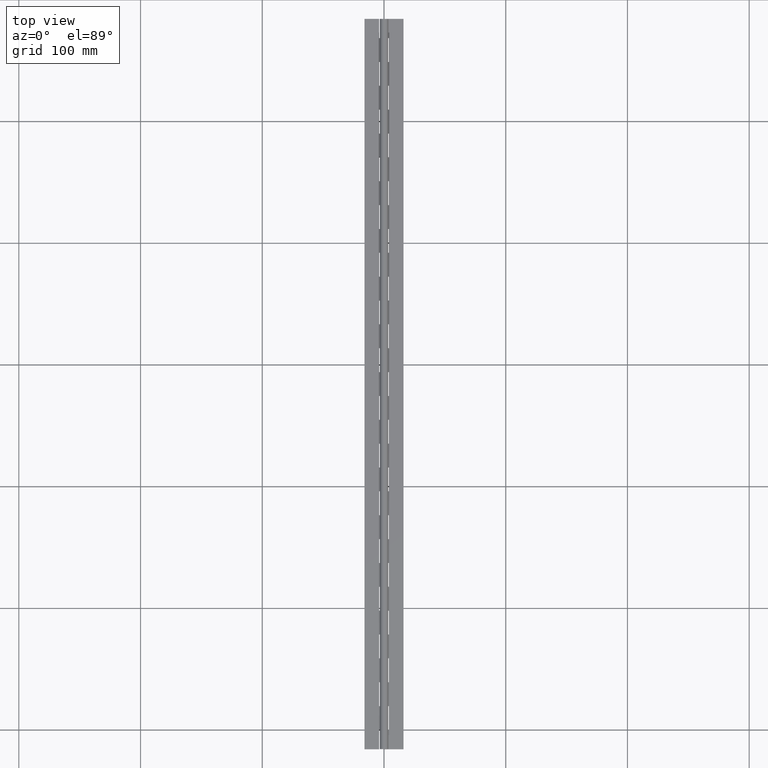
[diagram: clean part render]
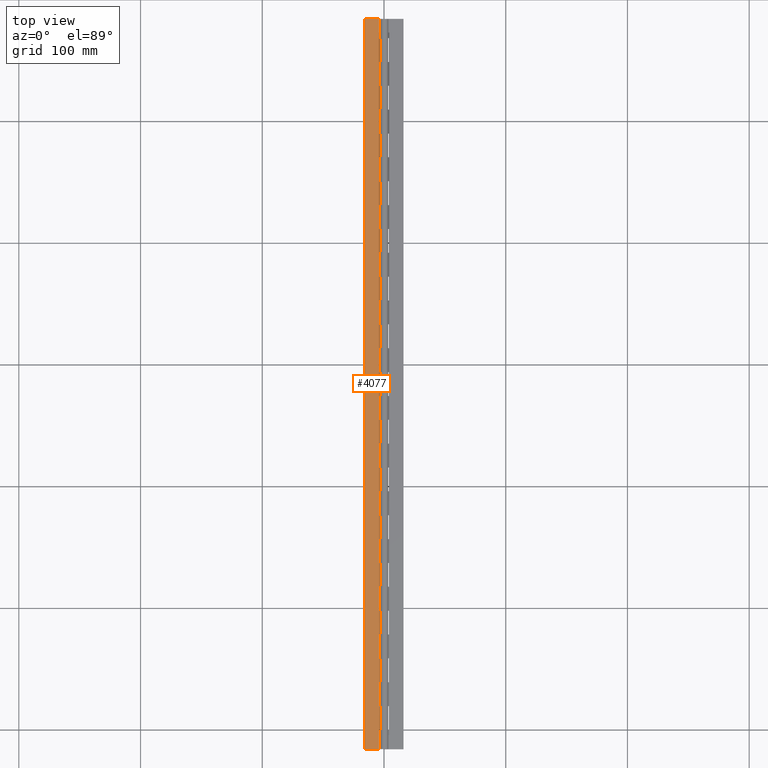
[diagram: same view with one face highlighted and labeled with its STEP entity id]
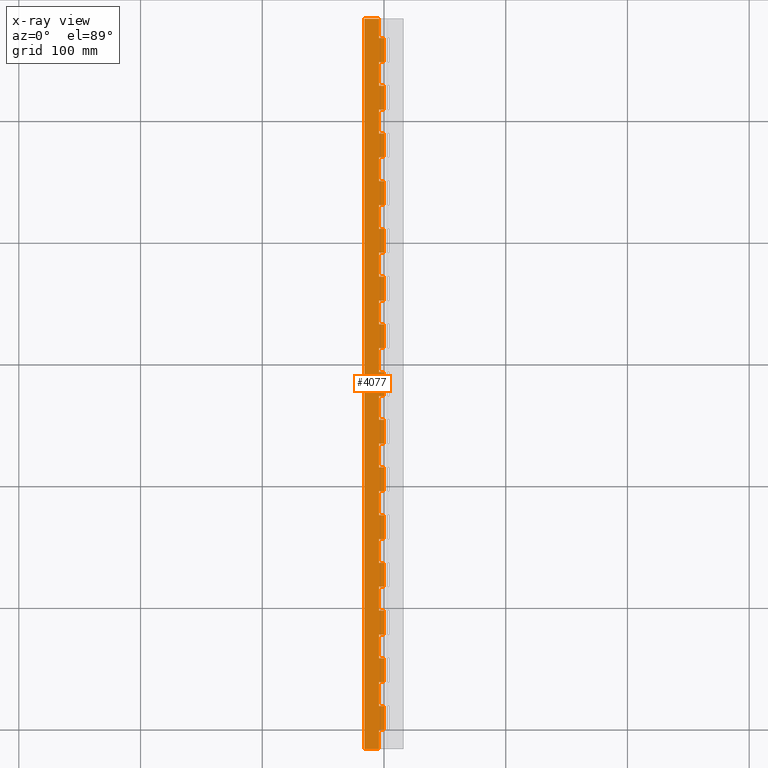
[diagram: x-ray of the same camera — body ghosted, the highlighted face saturated]
A machine part, top view. The second image highlights one B-rep face of the part: STEP entity #4077.
The next image is the same camera in x-ray: the body ghosted, the highlighted face saturated — about 0% of this face is hidden behind the body in this view.
In plain terms, the highlighted planar face has unit normal (-0, 0, -1).
Its self-contained STEP definition (entity closure, byte-faithful):
#2 = CARTESIAN_POINT ( 'NONE',  ( 0.0000000000000000000, 529.2000000000000500, -1.750000000000002400 ) ) ;
#8 = DIRECTION ( 'NONE',  ( -1.327594496921025700E-016, 1.000000000000000000, 1.619303460211448100E-032 ) ) ;
#28 = VERTEX_POINT ( 'NONE', #3989 ) ;
#51 = VECTOR ( 'NONE', #408, 1000.000000000000000 ) ;
#52 = VECTOR ( 'NONE', #5518, 1000.000000000000000 ) ;
#61 = EDGE_CURVE ( 'NONE', #6083, #2036, #5736, .T. ) ;
#68 = VECTOR ( 'NONE', #2856, 1000.000000000000000 ) ;
#72 = CARTESIAN_POINT ( 'NONE',  ( -3.999999824594461900, 117.6000000000000100, -1.750000000000002200 ) ) ;
#84 = LINE ( 'NONE', #4558, #2673 ) ;
#87 = CARTESIAN_POINT ( 'NONE',  ( 0.0000000000000000000, 274.4000000000000300, -1.750000000000002400 ) ) ;
#88 = EDGE_CURVE ( 'NONE', #631, #2661, #5560, .T. ) ;
#136 = ORIENTED_EDGE ( 'NONE', *, *, #694, .T. ) ;
#151 = VERTEX_POINT ( 'NONE', #3393 ) ;
#167 = VECTOR ( 'NONE', #4083, 1000.000000000000000 ) ;
#180 = DIRECTION ( 'NONE',  ( -1.327594496921025700E-016, 1.000000000000000000, 1.619303460211448100E-032 ) ) ;
#183 = VERTEX_POINT ( 'NONE', #2847 ) ;
#209 = CARTESIAN_POINT ( 'NONE',  ( -3.999999824594469900, 568.3999999999999800, -1.750000000000002000 ) ) ;
#227 = LINE ( 'NONE', #2297, #2818 ) ;
#228 = ORIENTED_EDGE ( 'NONE', *, *, #5638, .F. ) ;
#236 = EDGE_CURVE ( 'NONE', #4431, #3227, #4756, .T. ) ;
#241 = CARTESIAN_POINT ( 'NONE',  ( 2.143125705451388300E-016, 470.4000000000000900, -1.750000000000002400 ) ) ;
#252 = ORIENTED_EDGE ( 'NONE', *, *, #1956, .T. ) ;
#263 = LINE ( 'NONE', #3735, #1627 ) ;
#283 = CARTESIAN_POINT ( 'NONE',  ( 0.0000000000000000000, 313.6000000000000200, -1.750000000000002400 ) ) ;
#315 = LINE ( 'NONE', #1938, #5669 ) ;
#325 = ORIENTED_EDGE ( 'NONE', *, *, #458, .F. ) ;
#332 = CARTESIAN_POINT ( 'NONE',  ( 0.0000000000000000000, 352.8000000000000700, -1.750000000000002400 ) ) ;
#351 = LINE ( 'NONE', #2478, #1553 ) ;
#366 = CARTESIAN_POINT ( 'NONE',  ( -3.999999824594506300, 568.3999999999999800, -1.750000000000002000 ) ) ;
#377 = VERTEX_POINT ( 'NONE', #72 ) ;
#388 = LINE ( 'NONE', #2273, #4363 ) ;
#400 = CARTESIAN_POINT ( 'NONE',  ( 2.143125705451388300E-016, 196.0000000000000600, -1.750000000000002400 ) ) ;
#408 = DIRECTION ( 'NONE',  ( -1.327594496921025700E-016, 1.000000000000000000, 1.619303460211448100E-032 ) ) ;
#416 = EDGE_CURVE ( 'NONE', #3316, #1163, #997, .T. ) ;
#428 = CARTESIAN_POINT ( 'NONE',  ( -3.999999824594511200, 568.3999999999999800, -1.750000000000002000 ) ) ;
#443 = LINE ( 'NONE', #5734, #2884 ) ;
#445 = CARTESIAN_POINT ( 'NONE',  ( 2.143132568272414800E-016, 568.3999999999999800, -1.750000546904256100 ) ) ;
#458 = EDGE_CURVE ( 'NONE', #4785, #1462, #5726, .T. ) ;
#459 = ORIENTED_EDGE ( 'NONE', *, *, #2059, .T. ) ;
#462 = VERTEX_POINT ( 'NONE', #3673 ) ;
#539 = ORIENTED_EDGE ( 'NONE', *, *, #5739, .T. ) ;
#542 = EDGE_CURVE ( 'NONE', #28, #1823, #2637, .T. ) ;
#552 = VECTOR ( 'NONE', #1269, 1000.000000000000000 ) ;
#558 = CARTESIAN_POINT ( 'NONE',  ( -3.999999824594459200, 450.8000000000000700, -1.750000000000002200 ) ) ;
#576 = CARTESIAN_POINT ( 'NONE',  ( 0.0000000000000000000, 156.8000000000000400, -1.750000000000002400 ) ) ;
#581 = CARTESIAN_POINT ( 'NONE',  ( 0.0000000000000000000, 19.59999999999995200, -1.750000546904256100 ) ) ;
#611 = EDGE_CURVE ( 'NONE', #2170, #3270, #3679, .T. ) ;
#624 = ORIENTED_EDGE ( 'NONE', *, *, #4334, .F. ) ;
#631 = VERTEX_POINT ( 'NONE', #5879 ) ;
#642 = DIRECTION ( 'NONE',  ( 1.000000000000000000, 0.0000000000000000000, -1.219727457417876900E-016 ) ) ;
#645 = CARTESIAN_POINT ( 'NONE',  ( -3.999999824594459200, 137.2000000000000200, -1.750000000000002200 ) ) ;
#683 = ORIENTED_EDGE ( 'NONE', *, *, #5150, .T. ) ;
#694 = EDGE_CURVE ( 'NONE', #5751, #1251, #3215, .T. ) ;
#728 = DIRECTION ( 'NONE',  ( -1.327594496921025700E-016, 1.000000000000000000, 1.619303460211448100E-032 ) ) ;
#752 = VECTOR ( 'NONE', #1283, 1000.000000000000000 ) ;
#763 = ORIENTED_EDGE ( 'NONE', *, *, #1372, .F. ) ;
#772 = CARTESIAN_POINT ( 'NONE',  ( 0.0000000000000000000, 254.8000000000000400, -1.750000000000002400 ) ) ;
#780 = CARTESIAN_POINT ( 'NONE',  ( -3.999999824594459200, 568.3999999999999800, -1.750000000000002000 ) ) ;
#787 = ORIENTED_EDGE ( 'NONE', *, *, #5993, .T. ) ;
#809 = CARTESIAN_POINT ( 'NONE',  ( 2.143125705451388300E-016, 156.8000000000000400, -1.750000000000002400 ) ) ;
#823 = ORIENTED_EDGE ( 'NONE', *, *, #3586, .T. ) ;
#828 = EDGE_CURVE ( 'NONE', #6611, #6447, #2380, .T. ) ;
#858 = ORIENTED_EDGE ( 'NONE', *, *, #2391, .T. ) ;
#921 = EDGE_LOOP ( 'NONE', ( #459, #1325, #2287, #539, #5921, #6679, #6473, #4343, #3437, #858, #5655, #1675, #2506, #136, #823, #5950, #1582, #1278, #3602, #624, #1246, #3115, #6685, #1341, #6706, #787, #6542, #5788, #4405, #1254, #5010, #4657, #3073, #2552, #2779, #228, #2399, #5158, #4620, #2231, #2738, #5455, #2314, #3977, #4330, #4119, #1490, #5207, #2660, #4837, #6678, #325, #683, #3774, #6509, #763, #252, #5376, #2577, #4417, #2282, #1100, #6057, #6521 ) ) ;
#923 = LINE ( 'NONE', #1205, #4883 ) ;
#947 = VERTEX_POINT ( 'NONE', #3724 ) ;
#950 = EDGE_CURVE ( 'NONE', #4431, #4516, #1562, .T. ) ;
#952 = DIRECTION ( 'NONE',  ( -0.0000000000000000000, -1.000000000000000000, -0.0000000000000000000 ) ) ;
#956 = VERTEX_POINT ( 'NONE', #1566 ) ;
#991 = VECTOR ( 'NONE', #642, 1000.000000000000000 ) ;
#997 = LINE ( 'NONE', #2196, #4827 ) ;
#1009 = DIRECTION ( 'NONE',  ( -0.0000000000000000000, -1.000000000000000000, -0.0000000000000000000 ) ) ;
#1011 = VERTEX_POINT ( 'NONE', #1638 ) ;
#1021 = VECTOR ( 'NONE', #4283, 1000.000000000000000 ) ;
#1025 = CARTESIAN_POINT ( 'NONE',  ( -3.999999824594461900, 39.20000000000000300, -1.750000000000002200 ) ) ;
#1029 = CARTESIAN_POINT ( 'NONE',  ( 0.0000000000000000000, 333.2000000000000500, -1.750000000000002400 ) ) ;
#1031 = DIRECTION ( 'NONE',  ( -1.327594496921025700E-016, 1.000000000000000000, 1.619303460211448100E-032 ) ) ;
#1032 = VERTEX_POINT ( 'NONE', #5253 ) ;
#1039 = DIRECTION ( 'NONE',  ( -0.0000000000000000000, -1.000000000000000000, -0.0000000000000000000 ) ) ;
#1050 = LINE ( 'NONE', #6721, #5035 ) ;
#1055 = CARTESIAN_POINT ( 'NONE',  ( -3.999999824594461900, 392.0000000000000600, -1.750000000000002200 ) ) ;
#1064 = LINE ( 'NONE', #3103, #6274 ) ;
#1100 = ORIENTED_EDGE ( 'NONE', *, *, #4828, .T. ) ;
#1111 = VECTOR ( 'NONE', #6640, 1000.000000000000000 ) ;
#1135 = VERTEX_POINT ( 'NONE', #5679 ) ;
#1163 = VERTEX_POINT ( 'NONE', #4630 ) ;
#1174 = VECTOR ( 'NONE', #2309, 1000.000000000000000 ) ;
#1185 = VECTOR ( 'NONE', #6276, 1000.000000000000000 ) ;
#1188 = CARTESIAN_POINT ( 'NONE',  ( 2.143132568272414800E-016, 568.3999999999999800, -1.750000546904256100 ) ) ;
#1203 = CARTESIAN_POINT ( 'NONE',  ( -3.999999824594557400, 568.3999999999999800, -1.750000000000002000 ) ) ;
#1205 = CARTESIAN_POINT ( 'NONE',  ( 0.0000000000000000000, 117.6000000000000400, -1.750000000000002400 ) ) ;
#1243 = VECTOR ( 'NONE', #6204, 1000.000000000000000 ) ;
#1245 = DIRECTION ( 'NONE',  ( -1.000000000000000000, 0.0000000000000000000, 1.219727457417876900E-016 ) ) ;
#1246 = ORIENTED_EDGE ( 'NONE', *, *, #542, .T. ) ;
#1251 = VERTEX_POINT ( 'NONE', #3783 ) ;
#1254 = ORIENTED_EDGE ( 'NONE', *, *, #2802, .T. ) ;
#1269 = DIRECTION ( 'NONE',  ( -1.000000000000000000, 0.0000000000000000000, 1.219727457417876900E-016 ) ) ;
#1278 = ORIENTED_EDGE ( 'NONE', *, *, #4240, .T. ) ;
#1283 = DIRECTION ( 'NONE',  ( -1.327594496921025700E-016, 1.000000000000000000, 1.619303460211448100E-032 ) ) ;
#1288 = LINE ( 'NONE', #2773, #6649 ) ;
#1300 = VERTEX_POINT ( 'NONE', #3757 ) ;
#1320 = CARTESIAN_POINT ( 'NONE',  ( -3.999999824594459200, 215.6000000000000500, -1.750000000000002200 ) ) ;
#1323 = VECTOR ( 'NONE', #6270, 1000.000000000000000 ) ;
#1325 = ORIENTED_EDGE ( 'NONE', *, *, #5779, .T. ) ;
#1328 = VERTEX_POINT ( 'NONE', #4307 ) ;
#1341 = ORIENTED_EDGE ( 'NONE', *, *, #2795, .F. ) ;
#1352 = LINE ( 'NONE', #5806, #5336 ) ;
#1355 = LINE ( 'NONE', #5256, #1185 ) ;
#1358 = DIRECTION ( 'NONE',  ( 1.000000000000000000, 0.0000000000000000000, -1.219727457417876900E-016 ) ) ;
#1372 = EDGE_CURVE ( 'NONE', #2890, #1981, #1554, .T. ) ;
#1392 = LINE ( 'NONE', #5102, #5372 ) ;
#1394 = CARTESIAN_POINT ( 'NONE',  ( 2.143125705451388300E-016, 58.79999999999996200, -1.750000000000002400 ) ) ;
#1416 = EDGE_CURVE ( 'NONE', #6694, #4878, #1392, .T. ) ;
#1433 = DIRECTION ( 'NONE',  ( -0.0000000000000000000, -1.000000000000000000, -0.0000000000000000000 ) ) ;
#1451 = CARTESIAN_POINT ( 'NONE',  ( 2.143132568272414800E-016, 0.0000000000000000000, -1.750000546904256100 ) ) ;
#1461 = EDGE_CURVE ( 'NONE', #2897, #1462, #1064, .T. ) ;
#1462 = VERTEX_POINT ( 'NONE', #5777 ) ;
#1464 = CARTESIAN_POINT ( 'NONE',  ( 2.143132568272414800E-016, 568.3999999999999800, -1.750000546904256100 ) ) ;
#1466 = DIRECTION ( 'NONE',  ( -0.0000000000000000000, -1.000000000000000000, -0.0000000000000000000 ) ) ;
#1475 = LINE ( 'NONE', #6715, #6516 ) ;
#1490 = ORIENTED_EDGE ( 'NONE', *, *, #416, .T. ) ;
#1510 = VECTOR ( 'NONE', #952, 1000.000000000000000 ) ;
#1514 = CARTESIAN_POINT ( 'NONE',  ( -3.999999824594461900, 470.4000000000000900, -1.750000000000002200 ) ) ;
#1524 = EDGE_CURVE ( 'NONE', #2816, #2036, #2257, .T. ) ;
#1553 = VECTOR ( 'NONE', #1433, 1000.000000000000000 ) ;
#1554 = LINE ( 'NONE', #2759, #4162 ) ;
#1562 = LINE ( 'NONE', #2651, #2631 ) ;
#1566 = CARTESIAN_POINT ( 'NONE',  ( 2.143125705451388300E-016, 176.4000000000000100, -1.750000000000002400 ) ) ;
#1577 = VECTOR ( 'NONE', #1358, 1000.000000000000000 ) ;
#1582 = ORIENTED_EDGE ( 'NONE', *, *, #6587, .T. ) ;
#1614 = VECTOR ( 'NONE', #2887, 1000.000000000000000 ) ;
#1627 = VECTOR ( 'NONE', #2708, 1000.000000000000000 ) ;
#1629 = CARTESIAN_POINT ( 'NONE',  ( 2.143125705451388300E-016, 313.6000000000000200, -1.750000000000002400 ) ) ;
#1638 = CARTESIAN_POINT ( 'NONE',  ( 2.143125705451388300E-016, 294.0000000000000600, -1.750000000000002400 ) ) ;
#1675 = ORIENTED_EDGE ( 'NONE', *, *, #1524, .F. ) ;
#1724 = VERTEX_POINT ( 'NONE', #581 ) ;
#1729 = CARTESIAN_POINT ( 'NONE',  ( -3.999999824594461900, 431.2000000000001000, -1.750000000000002200 ) ) ;
#1741 = VECTOR ( 'NONE', #6483, 1000.000000000000000 ) ;
#1748 = VECTOR ( 'NONE', #3481, 1000.000000000000000 ) ;
#1794 = CARTESIAN_POINT ( 'NONE',  ( -3.999999824594490300, 568.3999999999999800, -1.750000000000002000 ) ) ;
#1810 = LINE ( 'NONE', #6202, #5803 ) ;
#1823 = VERTEX_POINT ( 'NONE', #645 ) ;
#1831 = VERTEX_POINT ( 'NONE', #3255 ) ;
#1858 = CARTESIAN_POINT ( 'NONE',  ( 2.143132568272414800E-016, 39.20000000000001000, -1.750000546904256100 ) ) ;
#1869 = CARTESIAN_POINT ( 'NONE',  ( 0.0000000000000000000, 568.3999999999999800, -1.750000000000002400 ) ) ;
#1890 = LINE ( 'NONE', #1794, #2636 ) ;
#1915 = VECTOR ( 'NONE', #4846, 1000.000000000000000 ) ;
#1938 = CARTESIAN_POINT ( 'NONE',  ( 0.0000000000000000000, 548.8000000000000700, -1.750000000000002400 ) ) ;
#1939 = VECTOR ( 'NONE', #6686, 1000.000000000000000 ) ;
#1940 = CARTESIAN_POINT ( 'NONE',  ( 0.0000000000000000000, 470.4000000000000900, -1.750000000000002400 ) ) ;
#1956 = EDGE_CURVE ( 'NONE', #2890, #3517, #2083, .T. ) ;
#1969 = CARTESIAN_POINT ( 'NONE',  ( -15.99999982459446300, -15.80000000000000100, -1.750000000000000400 ) ) ;
#1970 = CARTESIAN_POINT ( 'NONE',  ( 0.0000000000000000000, 137.1999999999999900, -1.750000000000002400 ) ) ;
#1981 = VERTEX_POINT ( 'NONE', #241 ) ;
#1997 = VECTOR ( 'NONE', #5059, 1000.000000000000000 ) ;
#2036 = VERTEX_POINT ( 'NONE', #1858 ) ;
#2041 = VECTOR ( 'NONE', #8, 1000.000000000000000 ) ;
#2059 = EDGE_CURVE ( 'NONE', #183, #4231, #4042, .T. ) ;
#2077 = LINE ( 'NONE', #3290, #4689 ) ;
#2083 = LINE ( 'NONE', #2824, #552 ) ;
#2088 = CARTESIAN_POINT ( 'NONE',  ( 2.143132568272414800E-016, 568.3999999999999800, -1.750000546904256100 ) ) ;
#2123 = EDGE_CURVE ( 'NONE', #2397, #3056, #315, .T. ) ;
#2144 = VERTEX_POINT ( 'NONE', #1451 ) ;
#2147 = CARTESIAN_POINT ( 'NONE',  ( 2.143125705451388300E-016, 215.6000000000000200, -1.750000000000002400 ) ) ;
#2170 = VERTEX_POINT ( 'NONE', #6643 ) ;
#2189 = EDGE_CURVE ( 'NONE', #151, #3411, #1352, .T. ) ;
#2196 = CARTESIAN_POINT ( 'NONE',  ( 0.0000000000000000000, 392.0000000000000600, -1.750000000000002400 ) ) ;
#2231 = ORIENTED_EDGE ( 'NONE', *, *, #950, .F. ) ;
#2246 = EDGE_CURVE ( 'NONE', #2710, #4085, #2581, .T. ) ;
#2257 = LINE ( 'NONE', #1464, #5013 ) ;
#2272 = VECTOR ( 'NONE', #1466, 1000.000000000000000 ) ;
#2273 = CARTESIAN_POINT ( 'NONE',  ( 2.143132568272414800E-016, -15.80000000000000100, -1.750000546904256100 ) ) ;
#2278 = EDGE_CURVE ( 'NONE', #956, #2810, #2077, .T. ) ;
#2282 = ORIENTED_EDGE ( 'NONE', *, *, #6078, .T. ) ;
#2287 = ORIENTED_EDGE ( 'NONE', *, *, #2365, .F. ) ;
#2297 = CARTESIAN_POINT ( 'NONE',  ( -15.99999982459446300, 584.2000000000000500, -1.750000000000000400 ) ) ;
#2309 = DIRECTION ( 'NONE',  ( 1.000000000000000000, 0.0000000000000000000, -1.219727457417876900E-016 ) ) ;
#2314 = ORIENTED_EDGE ( 'NONE', *, *, #88, .T. ) ;
#2323 = VERTEX_POINT ( 'NONE', #5381 ) ;
#2331 = CARTESIAN_POINT ( 'NONE',  ( -15.99999982459446300, 568.3999999999999800, -1.750000000000000400 ) ) ;
#2335 = EDGE_CURVE ( 'NONE', #2323, #6629, #388, .T. ) ;
#2365 = EDGE_CURVE ( 'NONE', #1328, #6145, #227, .T. ) ;
#2380 = LINE ( 'NONE', #576, #991 ) ;
#2383 = CARTESIAN_POINT ( 'NONE',  ( 2.143125705451388300E-016, 529.2000000000000500, -1.750000000000002400 ) ) ;
#2391 = EDGE_CURVE ( 'NONE', #3308, #6083, #4035, .T. ) ;
#2397 = VERTEX_POINT ( 'NONE', #3375 ) ;
#2399 = ORIENTED_EDGE ( 'NONE', *, *, #2974, .T. ) ;
#2402 = LINE ( 'NONE', #5425, #1174 ) ;
#2407 = DIRECTION ( 'NONE',  ( -1.000000000000000000, 0.0000000000000000000, 1.219727457417876900E-016 ) ) ;
#2416 = EDGE_CURVE ( 'NONE', #4773, #3141, #4198, .T. ) ;
#2438 = VECTOR ( 'NONE', #6152, 1000.000000000000000 ) ;
#2447 = PLANE ( 'NONE',  #5835 ) ;
#2478 = CARTESIAN_POINT ( 'NONE',  ( 2.143132568272414800E-016, 568.3999999999999800, -1.750000546904256100 ) ) ;
#2501 = CARTESIAN_POINT ( 'NONE',  ( 2.143132568272414800E-016, 568.3999999999999800, -1.750000546904256100 ) ) ;
#2506 = ORIENTED_EDGE ( 'NONE', *, *, #4448, .T. ) ;
#2552 = ORIENTED_EDGE ( 'NONE', *, *, #6551, .T. ) ;
#2577 = ORIENTED_EDGE ( 'NONE', *, *, #2632, .T. ) ;
#2580 = DIRECTION ( 'NONE',  ( 1.000000000000000000, 0.0000000000000000000, -1.219727457417876900E-016 ) ) ;
#2581 = LINE ( 'NONE', #3746, #1021 ) ;
#2597 = DIRECTION ( 'NONE',  ( -1.000000000000000000, 0.0000000000000000000, 1.219727457417876900E-016 ) ) ;
#2618 = DIRECTION ( 'NONE',  ( -1.000000000000000000, 0.0000000000000000000, 1.219727457417876900E-016 ) ) ;
#2631 = VECTOR ( 'NONE', #6256, 1000.000000000000000 ) ;
#2632 = EDGE_CURVE ( 'NONE', #1032, #1831, #2402, .T. ) ;
#2636 = VECTOR ( 'NONE', #4926, 1000.000000000000000 ) ;
#2637 = LINE ( 'NONE', #1970, #1243 ) ;
#2651 = CARTESIAN_POINT ( 'NONE',  ( 2.143132568272414800E-016, 568.3999999999999800, -1.750000546904256100 ) ) ;
#2660 = ORIENTED_EDGE ( 'NONE', *, *, #3419, .T. ) ;
#2661 = VERTEX_POINT ( 'NONE', #4893 ) ;
#2662 = DIRECTION ( 'NONE',  ( 1.000000000000000000, 0.0000000000000000000, -1.219727457417876900E-016 ) ) ;
#2673 = VECTOR ( 'NONE', #5064, 1000.000000000000000 ) ;
#2708 = DIRECTION ( 'NONE',  ( -0.0000000000000000000, -1.000000000000000000, -0.0000000000000000000 ) ) ;
#2710 = VERTEX_POINT ( 'NONE', #6506 ) ;
#2711 = VERTEX_POINT ( 'NONE', #6491 ) ;
#2738 = ORIENTED_EDGE ( 'NONE', *, *, #236, .T. ) ;
#2759 = CARTESIAN_POINT ( 'NONE',  ( 2.143132568272414800E-016, 568.3999999999999800, -1.750000546904256100 ) ) ;
#2773 = CARTESIAN_POINT ( 'NONE',  ( 0.0000000000000000000, 372.4000000000000900, -1.750000000000002400 ) ) ;
#2779 = ORIENTED_EDGE ( 'NONE', *, *, #5297, .T. ) ;
#2782 = CARTESIAN_POINT ( 'NONE',  ( 0.0000000000000000000, 0.0000000000000000000, -1.750000000000002400 ) ) ;
#2795 = EDGE_CURVE ( 'NONE', #956, #6447, #4191, .T. ) ;
#2802 = EDGE_CURVE ( 'NONE', #6421, #1300, #5569, .T. ) ;
#2810 = VERTEX_POINT ( 'NONE', #4522 ) ;
#2812 = VECTOR ( 'NONE', #6062, 1000.000000000000000 ) ;
#2816 = VERTEX_POINT ( 'NONE', #1394 ) ;
#2818 = VECTOR ( 'NONE', #4879, 1000.000000000000100 ) ;
#2824 = CARTESIAN_POINT ( 'NONE',  ( 0.0000000000000000000, 490.0000000000000600, -1.750000000000002400 ) ) ;
#2847 = CARTESIAN_POINT ( 'NONE',  ( 2.143125705451388300E-016, 568.3999999999999800, -1.750000000000002400 ) ) ;
#2856 = DIRECTION ( 'NONE',  ( -1.327594496921025700E-016, 1.000000000000000000, 1.619303460211448100E-032 ) ) ;
#2884 = VECTOR ( 'NONE', #2618, 1000.000000000000000 ) ;
#2887 = DIRECTION ( 'NONE',  ( 1.000000000000000000, 0.0000000000000000000, -1.219727457417876900E-016 ) ) ;
#2890 = VERTEX_POINT ( 'NONE', #4850 ) ;
#2893 = EDGE_CURVE ( 'NONE', #377, #6463, #923, .T. ) ;
#2897 = VERTEX_POINT ( 'NONE', #1729 ) ;
#2904 = EDGE_CURVE ( 'NONE', #3400, #2144, #6456, .T. ) ;
#2917 = LINE ( 'NONE', #4594, #5498 ) ;
#2960 = CARTESIAN_POINT ( 'NONE',  ( 2.143132568272414800E-016, 568.3999999999999800, -1.750000546904256100 ) ) ;
#2974 = EDGE_CURVE ( 'NONE', #1011, #2170, #4513, .T. ) ;
#2994 = DIRECTION ( 'NONE',  ( -1.000000000000000000, 0.0000000000000000000, 1.219727457417876900E-016 ) ) ;
#3040 = FACE_OUTER_BOUND ( 'NONE', #921, .T. ) ;
#3056 = VERTEX_POINT ( 'NONE', #4483 ) ;
#3073 = ORIENTED_EDGE ( 'NONE', *, *, #2416, .T. ) ;
#3103 = CARTESIAN_POINT ( 'NONE',  ( 0.0000000000000000000, 431.2000000000001000, -1.750000000000002400 ) ) ;
#3110 = EDGE_CURVE ( 'NONE', #3503, #3316, #4903, .T. ) ;
#3115 = ORIENTED_EDGE ( 'NONE', *, *, #4235, .T. ) ;
#3141 = VERTEX_POINT ( 'NONE', #6634 ) ;
#3174 = LINE ( 'NONE', #780, #5771 ) ;
#3215 = LINE ( 'NONE', #4382, #5804 ) ;
#3219 = VECTOR ( 'NONE', #5680, 1000.000000000000000 ) ;
#3227 = VERTEX_POINT ( 'NONE', #5692 ) ;
#3240 = LINE ( 'NONE', #3508, #1997 ) ;
#3255 = CARTESIAN_POINT ( 'NONE',  ( 2.143125705451388300E-016, 509.6000000000000800, -1.750000000000002400 ) ) ;
#3270 = VERTEX_POINT ( 'NONE', #5235 ) ;
#3290 = CARTESIAN_POINT ( 'NONE',  ( 0.0000000000000000000, 176.4000000000000100, -1.750000000000002400 ) ) ;
#3308 = VERTEX_POINT ( 'NONE', #6250 ) ;
#3316 = VERTEX_POINT ( 'NONE', #1055 ) ;
#3322 = DIRECTION ( 'NONE',  ( 1.000000000000000000, 0.0000000000000000000, -1.219727457417876900E-016 ) ) ;
#3339 = LINE ( 'NONE', #2331, #6085 ) ;
#3342 = VECTOR ( 'NONE', #2662, 1000.000000000000000 ) ;
#3345 = LINE ( 'NONE', #4613, #1939 ) ;
#3375 = CARTESIAN_POINT ( 'NONE',  ( -3.999999824594461900, 548.8000000000000700, -1.750000000000002200 ) ) ;
#3393 = CARTESIAN_POINT ( 'NONE',  ( 2.143125705451388300E-016, 98.00000000000002800, -1.750000000000002400 ) ) ;
#3396 = DIRECTION ( 'NONE',  ( 1.000000000000000000, 0.0000000000000000000, -1.219727457417876900E-016 ) ) ;
#3400 = VERTEX_POINT ( 'NONE', #4247 ) ;
#3410 = CARTESIAN_POINT ( 'NONE',  ( -3.999999824594495700, 568.3999999999999800, -1.750000000000002000 ) ) ;
#3411 = VERTEX_POINT ( 'NONE', #5375 ) ;
#3419 = EDGE_CURVE ( 'NONE', #6553, #5706, #4507, .T. ) ;
#3437 = ORIENTED_EDGE ( 'NONE', *, *, #3635, .T. ) ;
#3441 = LINE ( 'NONE', #4108, #2041 ) ;
#3470 = EDGE_CURVE ( 'NONE', #3227, #631, #1890, .T. ) ;
#3481 = DIRECTION ( 'NONE',  ( -1.327594496921025700E-016, 1.000000000000000000, 1.619303460211448100E-032 ) ) ;
#3497 = LINE ( 'NONE', #87, #3342 ) ;
#3503 = VERTEX_POINT ( 'NONE', #4436 ) ;
#3507 = CARTESIAN_POINT ( 'NONE',  ( -3.999999824594485400, 568.3999999999999800, -1.750000000000002000 ) ) ;
#3508 = CARTESIAN_POINT ( 'NONE',  ( -3.999999824594501000, 568.3999999999999800, -1.750000000000002000 ) ) ;
#3517 = VERTEX_POINT ( 'NONE', #4463 ) ;
#3519 = CARTESIAN_POINT ( 'NONE',  ( 2.143125705451388300E-016, 450.8000000000000700, -1.750000000000002400 ) ) ;
#3536 = VERTEX_POINT ( 'NONE', #2383 ) ;
#3562 = LINE ( 'NONE', #2, #5997 ) ;
#3569 = CARTESIAN_POINT ( 'NONE',  ( 0.0000000000000000000, 450.8000000000000700, -1.750000000000002400 ) ) ;
#3586 = EDGE_CURVE ( 'NONE', #1251, #3411, #1810, .T. ) ;
#3602 = ORIENTED_EDGE ( 'NONE', *, *, #2893, .T. ) ;
#3615 = EDGE_CURVE ( 'NONE', #4773, #947, #4419, .T. ) ;
#3630 = CARTESIAN_POINT ( 'NONE',  ( -3.999999824594521900, 568.3999999999999800, -1.750000000000002000 ) ) ;
#3635 = EDGE_CURVE ( 'NONE', #1724, #3308, #443, .T. ) ;
#3638 = CARTESIAN_POINT ( 'NONE',  ( 2.143132568272414800E-016, 568.3999999999999800, -1.750000546904256100 ) ) ;
#3653 = LINE ( 'NONE', #5623, #2438 ) ;
#3658 = EDGE_CURVE ( 'NONE', #3536, #1831, #5468, .T. ) ;
#3673 = CARTESIAN_POINT ( 'NONE',  ( -3.999999824594459200, 98.00000000000001400, -1.750000000000002200 ) ) ;
#3679 = LINE ( 'NONE', #3410, #752 ) ;
#3724 = CARTESIAN_POINT ( 'NONE',  ( 2.143125705451388300E-016, 235.2000000000000700, -1.750000000000002400 ) ) ;
#3735 = CARTESIAN_POINT ( 'NONE',  ( 2.143132568272414800E-016, 568.3999999999999800, -1.750000546904256100 ) ) ;
#3746 = CARTESIAN_POINT ( 'NONE',  ( 0.0000000000000000000, 196.0000000000000600, -1.750000000000002400 ) ) ;
#3757 = CARTESIAN_POINT ( 'NONE',  ( -3.999999824594461900, 235.2000000000000500, -1.750000000000002200 ) ) ;
#3774 = ORIENTED_EDGE ( 'NONE', *, *, #1416, .T. ) ;
#3778 = VERTEX_POINT ( 'NONE', #4272 ) ;
#3783 = CARTESIAN_POINT ( 'NONE',  ( -3.999999824594461900, 78.40000000000000600, -1.750000000000002200 ) ) ;
#3795 = DIRECTION ( 'NONE',  ( -1.000000000000000000, 0.0000000000000000000, 1.219727457417876900E-016 ) ) ;
#3814 = VECTOR ( 'NONE', #6105, 1000.000000000000000 ) ;
#3864 = CARTESIAN_POINT ( 'NONE',  ( 0.0000000000000000000, 294.0000000000000600, -1.750000000000002400 ) ) ;
#3886 = DIRECTION ( 'NONE',  ( -1.000000000000000000, 0.0000000000000000000, 1.219727457417876900E-016 ) ) ;
#3968 = EDGE_CURVE ( 'NONE', #3270, #4516, #6602, .T. ) ;
#3977 = ORIENTED_EDGE ( 'NONE', *, *, #6175, .F. ) ;
#3980 = LINE ( 'NONE', #2501, #2272 ) ;
#3989 = CARTESIAN_POINT ( 'NONE',  ( 2.143125705451388300E-016, 137.1999999999999900, -1.750000000000002400 ) ) ;
#3990 = DIRECTION ( 'NONE',  ( 1.000000000000000000, 0.0000000000000000000, -1.219727457417876900E-016 ) ) ;
#4031 = CARTESIAN_POINT ( 'NONE',  ( 2.143125705451388300E-016, 411.6000000000000800, -1.750000000000002400 ) ) ;
#4035 = LINE ( 'NONE', #5958, #68 ) ;
#4042 = LINE ( 'NONE', #1869, #5257 ) ;
#4077 = ADVANCED_FACE ( 'NONE', ( #3040 ), #2447, .F. ) ;
#4083 = DIRECTION ( 'NONE',  ( -1.000000000000000000, 0.0000000000000000000, 1.219727457417876900E-016 ) ) ;
#4085 = VERTEX_POINT ( 'NONE', #400 ) ;
#4108 = CARTESIAN_POINT ( 'NONE',  ( -3.999999824594516500, 568.3999999999999800, -1.750000000000002000 ) ) ;
#4119 = ORIENTED_EDGE ( 'NONE', *, *, #3110, .T. ) ;
#4135 = LINE ( 'NONE', #1188, #6571 ) ;
#4137 = CARTESIAN_POINT ( 'NONE',  ( 2.143125705451388300E-016, 333.2000000000000500, -1.750000000000002400 ) ) ;
#4162 = VECTOR ( 'NONE', #6332, 1000.000000000000000 ) ;
#4167 = VECTOR ( 'NONE', #3396, 1000.000000000000000 ) ;
#4191 = LINE ( 'NONE', #2960, #2812 ) ;
#4198 = LINE ( 'NONE', #772, #5410 ) ;
#4214 = EDGE_CURVE ( 'NONE', #183, #3056, #1475, .T. ) ;
#4231 = VERTEX_POINT ( 'NONE', #4650 ) ;
#4235 = EDGE_CURVE ( 'NONE', #1823, #6611, #3441, .T. ) ;
#4240 = EDGE_CURVE ( 'NONE', #462, #377, #6191, .T. ) ;
#4247 = CARTESIAN_POINT ( 'NONE',  ( -3.999999824594463700, 0.0000000000000000000, -1.750000000000002200 ) ) ;
#4272 = CARTESIAN_POINT ( 'NONE',  ( -3.999999824594461900, 274.4000000000000300, -1.750000000000002200 ) ) ;
#4277 = DIRECTION ( 'NONE',  ( 1.000000000000000000, 0.0000000000000000000, -1.219727457417876900E-016 ) ) ;
#4283 = DIRECTION ( 'NONE',  ( 1.000000000000000000, 0.0000000000000000000, -1.219727457417876900E-016 ) ) ;
#4307 = CARTESIAN_POINT ( 'NONE',  ( -15.99999982459446300, 584.2000000000000500, -1.750000000000000400 ) ) ;
#4330 = ORIENTED_EDGE ( 'NONE', *, *, #5442, .T. ) ;
#4334 = EDGE_CURVE ( 'NONE', #28, #6463, #351, .T. ) ;
#4341 = VECTOR ( 'NONE', #6322, 1000.000000000000000 ) ;
#4343 = ORIENTED_EDGE ( 'NONE', *, *, #6585, .F. ) ;
#4363 = VECTOR ( 'NONE', #6423, 1000.000000000000100 ) ;
#4373 = CARTESIAN_POINT ( 'NONE',  ( 0.0000000000000000000, 411.6000000000000800, -1.750000000000002400 ) ) ;
#4381 = LINE ( 'NONE', #5485, #1614 ) ;
#4382 = CARTESIAN_POINT ( 'NONE',  ( -3.999999824594526700, 568.3999999999999800, -1.750000000000002000 ) ) ;
#4384 = CARTESIAN_POINT ( 'NONE',  ( -3.999999824594459200, 411.6000000000000800, -1.750000000000002200 ) ) ;
#4405 = ORIENTED_EDGE ( 'NONE', *, *, #5948, .T. ) ;
#4417 = ORIENTED_EDGE ( 'NONE', *, *, #3658, .F. ) ;
#4419 = LINE ( 'NONE', #3638, #5634 ) ;
#4431 = VERTEX_POINT ( 'NONE', #4137 ) ;
#4436 = CARTESIAN_POINT ( 'NONE',  ( -3.999999824594459200, 372.4000000000000900, -1.750000000000002200 ) ) ;
#4448 = EDGE_CURVE ( 'NONE', #2816, #5751, #1050, .T. ) ;
#4453 = DIRECTION ( 'NONE',  ( -1.327594496921025700E-016, 1.000000000000000000, 1.619303460211448100E-032 ) ) ;
#4463 = CARTESIAN_POINT ( 'NONE',  ( -3.999999824594459200, 490.0000000000000600, -1.750000000000002200 ) ) ;
#4477 = CARTESIAN_POINT ( 'NONE',  ( 0.0000000000000000000, 39.20000000000001000, -1.750000000000002400 ) ) ;
#4483 = CARTESIAN_POINT ( 'NONE',  ( 2.143125705451388300E-016, 548.8000000000000700, -1.750000000000002400 ) ) ;
#4485 = CARTESIAN_POINT ( 'NONE',  ( 2.143125705451388300E-016, 117.6000000000000400, -1.750000000000002400 ) ) ;
#4507 = LINE ( 'NONE', #4373, #4665 ) ;
#4513 = LINE ( 'NONE', #3864, #1741 ) ;
#4516 = VERTEX_POINT ( 'NONE', #1629 ) ;
#4522 = CARTESIAN_POINT ( 'NONE',  ( -3.999999824594459200, 176.4000000000000300, -1.750000000000002200 ) ) ;
#4549 = CARTESIAN_POINT ( 'NONE',  ( 2.143125705451388300E-016, 254.8000000000000400, -1.750000000000002400 ) ) ;
#4558 = CARTESIAN_POINT ( 'NONE',  ( 0.0000000000000000000, 215.6000000000000200, -1.750000000000002400 ) ) ;
#4568 = EDGE_CURVE ( 'NONE', #6553, #1163, #263, .T. ) ;
#4594 = CARTESIAN_POINT ( 'NONE',  ( 0.0000000000000000000, 98.00000000000002800, -1.750000000000002400 ) ) ;
#4613 = CARTESIAN_POINT ( 'NONE',  ( -3.999999824594480100, 568.3999999999999800, -1.750000000000002000 ) ) ;
#4620 = ORIENTED_EDGE ( 'NONE', *, *, #3968, .T. ) ;
#4630 = CARTESIAN_POINT ( 'NONE',  ( 2.143125705451388300E-016, 392.0000000000000600, -1.750000000000002400 ) ) ;
#4650 = CARTESIAN_POINT ( 'NONE',  ( -3.999999824594459200, 568.3999999999999800, -1.750000000000002200 ) ) ;
#4657 = ORIENTED_EDGE ( 'NONE', *, *, #3615, .F. ) ;
#4665 = VECTOR ( 'NONE', #1245, 1000.000000000000000 ) ;
#4667 = DIRECTION ( 'NONE',  ( -1.000000000000000000, 0.0000000000000000000, 1.219727457417876900E-016 ) ) ;
#4689 = VECTOR ( 'NONE', #3795, 1000.000000000000000 ) ;
#4756 = LINE ( 'NONE', #1029, #3219 ) ;
#4773 = VERTEX_POINT ( 'NONE', #4549 ) ;
#4780 = EDGE_CURVE ( 'NONE', #4878, #1981, #5194, .T. ) ;
#4785 = VERTEX_POINT ( 'NONE', #3519 ) ;
#4808 = EDGE_CURVE ( 'NONE', #5324, #4085, #3980, .T. ) ;
#4827 = VECTOR ( 'NONE', #4277, 1000.000000000000000 ) ;
#4828 = EDGE_CURVE ( 'NONE', #6636, #2397, #3653, .T. ) ;
#4837 = ORIENTED_EDGE ( 'NONE', *, *, #4857, .T. ) ;
#4846 = DIRECTION ( 'NONE',  ( -1.646889375927348500E-016, 1.000000000000000000, 2.008756191148378900E-032 ) ) ;
#4850 = CARTESIAN_POINT ( 'NONE',  ( 2.143125705451388300E-016, 490.0000000000000600, -1.750000000000002400 ) ) ;
#4852 = LINE ( 'NONE', #1203, #1915 ) ;
#4857 = EDGE_CURVE ( 'NONE', #5706, #2897, #3345, .T. ) ;
#4878 = VERTEX_POINT ( 'NONE', #1514 ) ;
#4879 = DIRECTION ( 'NONE',  ( 0.9999999999999994400, 0.0000000000000000000, -3.418151635014737200E-008 ) ) ;
#4883 = VECTOR ( 'NONE', #5360, 1000.000000000000000 ) ;
#4893 = CARTESIAN_POINT ( 'NONE',  ( 2.143125705451388300E-016, 352.8000000000000700, -1.750000000000002400 ) ) ;
#4903 = LINE ( 'NONE', #3507, #51 ) ;
#4926 = DIRECTION ( 'NONE',  ( -1.327594496921025700E-016, 1.000000000000000000, 1.619303460211448100E-032 ) ) ;
#5010 = ORIENTED_EDGE ( 'NONE', *, *, #5807, .T. ) ;
#5013 = VECTOR ( 'NONE', #5094, 1000.000000000000000 ) ;
#5017 = VECTOR ( 'NONE', #180, 1000.000000000000000 ) ;
#5035 = VECTOR ( 'NONE', #2597, 1000.000000000000000 ) ;
#5059 = DIRECTION ( 'NONE',  ( -1.327594496921025700E-016, 1.000000000000000000, 1.619303460211448100E-032 ) ) ;
#5064 = DIRECTION ( 'NONE',  ( -1.000000000000000000, 0.0000000000000000000, 1.219727457417876900E-016 ) ) ;
#5094 = DIRECTION ( 'NONE',  ( -0.0000000000000000000, -1.000000000000000000, -0.0000000000000000000 ) ) ;
#5102 = CARTESIAN_POINT ( 'NONE',  ( -3.999999824594474800, 568.3999999999999800, -1.750000000000002000 ) ) ;
#5105 = DIRECTION ( 'NONE',  ( -1.000000000000000000, 0.0000000000000000000, 1.219727457417876900E-016 ) ) ;
#5150 = EDGE_CURVE ( 'NONE', #4785, #6694, #5693, .T. ) ;
#5158 = ORIENTED_EDGE ( 'NONE', *, *, #611, .T. ) ;
#5194 = LINE ( 'NONE', #1940, #3814 ) ;
#5207 = ORIENTED_EDGE ( 'NONE', *, *, #4568, .F. ) ;
#5235 = CARTESIAN_POINT ( 'NONE',  ( -3.999999824594461900, 313.6000000000000200, -1.750000000000002200 ) ) ;
#5240 = VECTOR ( 'NONE', #3322, 1000.000000000000000 ) ;
#5250 = CARTESIAN_POINT ( 'NONE',  ( 2.143132568272414800E-016, 568.3999999999999800, -1.750000546904256100 ) ) ;
#5253 = CARTESIAN_POINT ( 'NONE',  ( -3.999999824594461900, 509.6000000000000800, -1.750000000000002200 ) ) ;
#5256 = CARTESIAN_POINT ( 'NONE',  ( 2.143132568272414800E-016, 568.3999999999999800, -1.750000546904256100 ) ) ;
#5257 = VECTOR ( 'NONE', #2407, 1000.000000000000000 ) ;
#5260 = LINE ( 'NONE', #428, #1111 ) ;
#5297 = EDGE_CURVE ( 'NONE', #3778, #1135, #3497, .T. ) ;
#5324 = VERTEX_POINT ( 'NONE', #2147 ) ;
#5336 = VECTOR ( 'NONE', #6328, 1000.000000000000000 ) ;
#5350 = DIRECTION ( 'NONE',  ( -0.0000000000000000000, -1.000000000000000000, -0.0000000000000000000 ) ) ;
#5360 = DIRECTION ( 'NONE',  ( 1.000000000000000000, 0.0000000000000000000, -1.219727457417876900E-016 ) ) ;
#5372 = VECTOR ( 'NONE', #6225, 1000.000000000000000 ) ;
#5375 = CARTESIAN_POINT ( 'NONE',  ( 2.143125705451388300E-016, 78.40000000000002000, -1.750000000000002400 ) ) ;
#5376 = ORIENTED_EDGE ( 'NONE', *, *, #5681, .T. ) ;
#5381 = CARTESIAN_POINT ( 'NONE',  ( -3.999999824594465500, -15.80000000000000100, -1.750000410178196500 ) ) ;
#5410 = VECTOR ( 'NONE', #3886, 1000.000000000000000 ) ;
#5421 = CARTESIAN_POINT ( 'NONE',  ( -3.999999824594459200, 58.80000000000000400, -1.750000000000002200 ) ) ;
#5425 = CARTESIAN_POINT ( 'NONE',  ( 0.0000000000000000000, 509.6000000000000800, -1.750000000000002400 ) ) ;
#5442 = EDGE_CURVE ( 'NONE', #2711, #3503, #1288, .T. ) ;
#5455 = ORIENTED_EDGE ( 'NONE', *, *, #3470, .T. ) ;
#5468 = LINE ( 'NONE', #2088, #1323 ) ;
#5485 = CARTESIAN_POINT ( 'NONE',  ( 0.0000000000000000000, 235.2000000000000700, -1.750000000000002400 ) ) ;
#5498 = VECTOR ( 'NONE', #5105, 1000.000000000000000 ) ;
#5518 = DIRECTION ( 'NONE',  ( 1.000000000000000000, 0.0000000000000000000, -1.219727457417876900E-016 ) ) ;
#5560 = LINE ( 'NONE', #332, #52 ) ;
#5569 = LINE ( 'NONE', #366, #1748 ) ;
#5623 = CARTESIAN_POINT ( 'NONE',  ( -3.999999824594464600, 568.3999999999999800, -1.750000000000002000 ) ) ;
#5629 = DIRECTION ( 'NONE',  ( 1.000000000000000000, 0.0000000000000000000, -1.219727457417876900E-016 ) ) ;
#5634 = VECTOR ( 'NONE', #1039, 1000.000000000000000 ) ;
#5638 = EDGE_CURVE ( 'NONE', #1011, #1135, #4135, .T. ) ;
#5655 = ORIENTED_EDGE ( 'NONE', *, *, #61, .T. ) ;
#5665 = LINE ( 'NONE', #445, #1510 ) ;
#5669 = VECTOR ( 'NONE', #3990, 1000.000000000000000 ) ;
#5679 = CARTESIAN_POINT ( 'NONE',  ( 2.143125705451388300E-016, 274.4000000000000300, -1.750000000000002400 ) ) ;
#5680 = DIRECTION ( 'NONE',  ( -1.000000000000000000, 0.0000000000000000000, 1.219727457417876900E-016 ) ) ;
#5681 = EDGE_CURVE ( 'NONE', #3517, #1032, #6403, .T. ) ;
#5692 = CARTESIAN_POINT ( 'NONE',  ( -3.999999824594459200, 333.2000000000000500, -1.750000000000002200 ) ) ;
#5693 = LINE ( 'NONE', #3569, #167 ) ;
#5706 = VERTEX_POINT ( 'NONE', #4384 ) ;
#5726 = LINE ( 'NONE', #5250, #4341 ) ;
#5734 = CARTESIAN_POINT ( 'NONE',  ( 0.0000000000000000000, 19.59999999999995200, -1.750000000000002400 ) ) ;
#5736 = LINE ( 'NONE', #4477, #1577 ) ;
#5739 = EDGE_CURVE ( 'NONE', #1328, #6629, #3339, .T. ) ;
#5751 = VERTEX_POINT ( 'NONE', #5421 ) ;
#5771 = VECTOR ( 'NONE', #4453, 1000.000000000000000 ) ;
#5772 = CARTESIAN_POINT ( 'NONE',  ( -3.999999824594461000, 584.2000000000000500, -1.750000273452128300 ) ) ;
#5777 = CARTESIAN_POINT ( 'NONE',  ( 2.143125705451388300E-016, 431.2000000000001000, -1.750000000000002400 ) ) ;
#5779 = EDGE_CURVE ( 'NONE', #4231, #6145, #3174, .T. ) ;
#5788 = ORIENTED_EDGE ( 'NONE', *, *, #4808, .F. ) ;
#5803 = VECTOR ( 'NONE', #2580, 1000.000000000000000 ) ;
#5804 = VECTOR ( 'NONE', #728, 1000.000000000000000 ) ;
#5806 = CARTESIAN_POINT ( 'NONE',  ( 2.143132568272414800E-016, 568.3999999999999800, -1.750000546904256100 ) ) ;
#5807 = EDGE_CURVE ( 'NONE', #1300, #947, #4381, .T. ) ;
#5835 = AXIS2_PLACEMENT_3D ( 'NONE', #6067, #6089, #2994 ) ;
#5879 = CARTESIAN_POINT ( 'NONE',  ( -3.999999824594461900, 352.8000000000000700, -1.750000000000002200 ) ) ;
#5921 = ORIENTED_EDGE ( 'NONE', *, *, #2335, .F. ) ;
#5948 = EDGE_CURVE ( 'NONE', #5324, #6421, #84, .T. ) ;
#5950 = ORIENTED_EDGE ( 'NONE', *, *, #2189, .F. ) ;
#5958 = CARTESIAN_POINT ( 'NONE',  ( -3.999999824594532100, 568.3999999999999800, -1.750000000000002000 ) ) ;
#5966 = DIRECTION ( 'NONE',  ( -0.0000000000000000000, -1.000000000000000000, -0.0000000000000000000 ) ) ;
#5993 = EDGE_CURVE ( 'NONE', #2810, #2710, #5260, .T. ) ;
#5997 = VECTOR ( 'NONE', #4667, 1000.000000000000000 ) ;
#6031 = VECTOR ( 'NONE', #1031, 1000.000000000000000 ) ;
#6057 = ORIENTED_EDGE ( 'NONE', *, *, #2123, .T. ) ;
#6062 = DIRECTION ( 'NONE',  ( -0.0000000000000000000, -1.000000000000000000, -0.0000000000000000000 ) ) ;
#6067 = CARTESIAN_POINT ( 'NONE',  ( 0.0000000000000000000, 568.3999999999999800, -1.750000000000002400 ) ) ;
#6078 = EDGE_CURVE ( 'NONE', #3536, #6636, #3562, .T. ) ;
#6083 = VERTEX_POINT ( 'NONE', #1025 ) ;
#6085 = VECTOR ( 'NONE', #5966, 1000.000000000000000 ) ;
#6089 = DIRECTION ( 'NONE',  ( -1.219727457417876900E-016, 0.0000000000000000000, -1.000000000000000000 ) ) ;
#6105 = DIRECTION ( 'NONE',  ( 1.000000000000000000, 0.0000000000000000000, -1.219727457417876900E-016 ) ) ;
#6145 = VERTEX_POINT ( 'NONE', #5772 ) ;
#6152 = DIRECTION ( 'NONE',  ( -1.327594496921025700E-016, 1.000000000000000000, 1.619303460211448100E-032 ) ) ;
#6175 = EDGE_CURVE ( 'NONE', #2711, #2661, #1355, .T. ) ;
#6178 = CARTESIAN_POINT ( 'NONE',  ( -3.999999824594459200, 529.2000000000000500, -1.750000000000002200 ) ) ;
#6191 = LINE ( 'NONE', #3630, #6031 ) ;
#6202 = CARTESIAN_POINT ( 'NONE',  ( 0.0000000000000000000, 78.40000000000002000, -1.750000000000002400 ) ) ;
#6204 = DIRECTION ( 'NONE',  ( -1.000000000000000000, 0.0000000000000000000, 1.219727457417876900E-016 ) ) ;
#6225 = DIRECTION ( 'NONE',  ( -1.327594496921025700E-016, 1.000000000000000000, 1.619303460211448100E-032 ) ) ;
#6250 = CARTESIAN_POINT ( 'NONE',  ( -3.999999824594459200, 19.60000000000000100, -1.750000000000002200 ) ) ;
#6256 = DIRECTION ( 'NONE',  ( -0.0000000000000000000, -1.000000000000000000, -0.0000000000000000000 ) ) ;
#6270 = DIRECTION ( 'NONE',  ( -0.0000000000000000000, -1.000000000000000000, -0.0000000000000000000 ) ) ;
#6274 = VECTOR ( 'NONE', #5629, 1000.000000000000000 ) ;
#6276 = DIRECTION ( 'NONE',  ( -0.0000000000000000000, -1.000000000000000000, -0.0000000000000000000 ) ) ;
#6277 = EDGE_CURVE ( 'NONE', #2323, #3400, #4852, .T. ) ;
#6322 = DIRECTION ( 'NONE',  ( -0.0000000000000000000, -1.000000000000000000, -0.0000000000000000000 ) ) ;
#6328 = DIRECTION ( 'NONE',  ( -0.0000000000000000000, -1.000000000000000000, -0.0000000000000000000 ) ) ;
#6332 = DIRECTION ( 'NONE',  ( -0.0000000000000000000, -1.000000000000000000, -0.0000000000000000000 ) ) ;
#6397 = DIRECTION ( 'NONE',  ( -1.000000000000000000, 0.0000000000000000000, 1.219727457417876900E-016 ) ) ;
#6403 = LINE ( 'NONE', #209, #5017 ) ;
#6421 = VERTEX_POINT ( 'NONE', #1320 ) ;
#6423 = DIRECTION ( 'NONE',  ( -0.9999999999999994400, -0.0000000000000000000, 3.418151635014737200E-008 ) ) ;
#6447 = VERTEX_POINT ( 'NONE', #809 ) ;
#6456 = LINE ( 'NONE', #2782, #5240 ) ;
#6463 = VERTEX_POINT ( 'NONE', #4485 ) ;
#6473 = ORIENTED_EDGE ( 'NONE', *, *, #2904, .T. ) ;
#6483 = DIRECTION ( 'NONE',  ( -1.000000000000000000, 0.0000000000000000000, 1.219727457417876900E-016 ) ) ;
#6491 = CARTESIAN_POINT ( 'NONE',  ( 2.143125705451388300E-016, 372.4000000000000900, -1.750000000000002400 ) ) ;
#6506 = CARTESIAN_POINT ( 'NONE',  ( -3.999999824594461900, 196.0000000000000300, -1.750000000000002200 ) ) ;
#6509 = ORIENTED_EDGE ( 'NONE', *, *, #4780, .T. ) ;
#6516 = VECTOR ( 'NONE', #1009, 1000.000000000000000 ) ;
#6521 = ORIENTED_EDGE ( 'NONE', *, *, #4214, .F. ) ;
#6542 = ORIENTED_EDGE ( 'NONE', *, *, #2246, .T. ) ;
#6551 = EDGE_CURVE ( 'NONE', #3141, #3778, #3240, .T. ) ;
#6553 = VERTEX_POINT ( 'NONE', #4031 ) ;
#6571 = VECTOR ( 'NONE', #5350, 1000.000000000000000 ) ;
#6585 = EDGE_CURVE ( 'NONE', #1724, #2144, #5665, .T. ) ;
#6587 = EDGE_CURVE ( 'NONE', #151, #462, #2917, .T. ) ;
#6602 = LINE ( 'NONE', #283, #4167 ) ;
#6611 = VERTEX_POINT ( 'NONE', #6671 ) ;
#6629 = VERTEX_POINT ( 'NONE', #1969 ) ;
#6634 = CARTESIAN_POINT ( 'NONE',  ( -3.999999824594459200, 254.8000000000000400, -1.750000000000002200 ) ) ;
#6636 = VERTEX_POINT ( 'NONE', #6178 ) ;
#6640 = DIRECTION ( 'NONE',  ( -1.327594496921025700E-016, 1.000000000000000000, 1.619303460211448100E-032 ) ) ;
#6643 = CARTESIAN_POINT ( 'NONE',  ( -3.999999824594459200, 294.0000000000000600, -1.750000000000002200 ) ) ;
#6649 = VECTOR ( 'NONE', #6397, 1000.000000000000000 ) ;
#6671 = CARTESIAN_POINT ( 'NONE',  ( -3.999999824594461900, 156.8000000000000100, -1.750000000000002200 ) ) ;
#6678 = ORIENTED_EDGE ( 'NONE', *, *, #1461, .T. ) ;
#6679 = ORIENTED_EDGE ( 'NONE', *, *, #6277, .T. ) ;
#6685 = ORIENTED_EDGE ( 'NONE', *, *, #828, .T. ) ;
#6686 = DIRECTION ( 'NONE',  ( -1.327594496921025700E-016, 1.000000000000000000, 1.619303460211448100E-032 ) ) ;
#6694 = VERTEX_POINT ( 'NONE', #558 ) ;
#6706 = ORIENTED_EDGE ( 'NONE', *, *, #2278, .T. ) ;
#6715 = CARTESIAN_POINT ( 'NONE',  ( 2.143132568272414800E-016, 568.3999999999999800, -1.750000546904256100 ) ) ;
#6721 = CARTESIAN_POINT ( 'NONE',  ( 0.0000000000000000000, 58.79999999999996200, -1.750000000000002400 ) ) ;